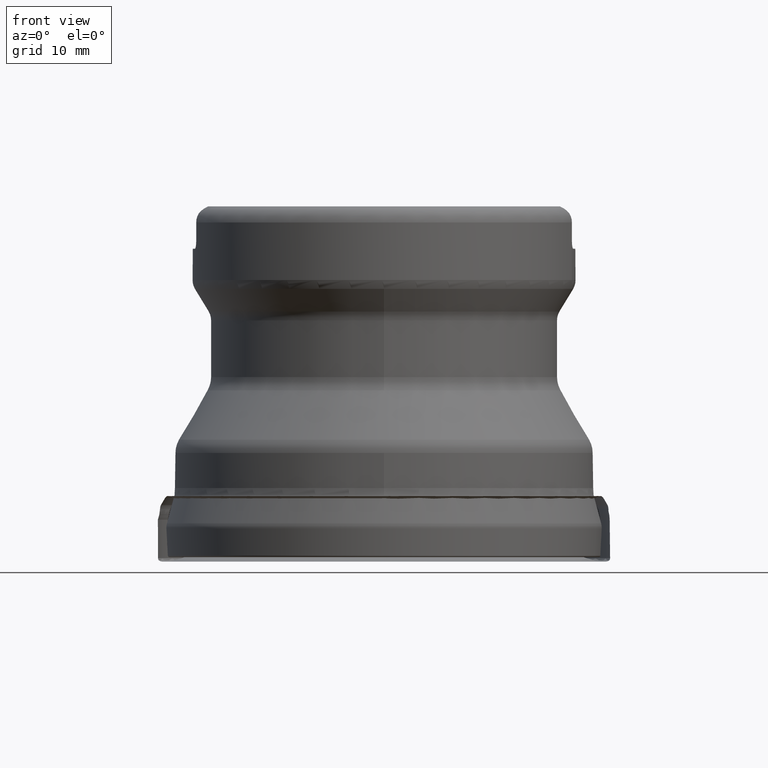
[diagram: clean part render]
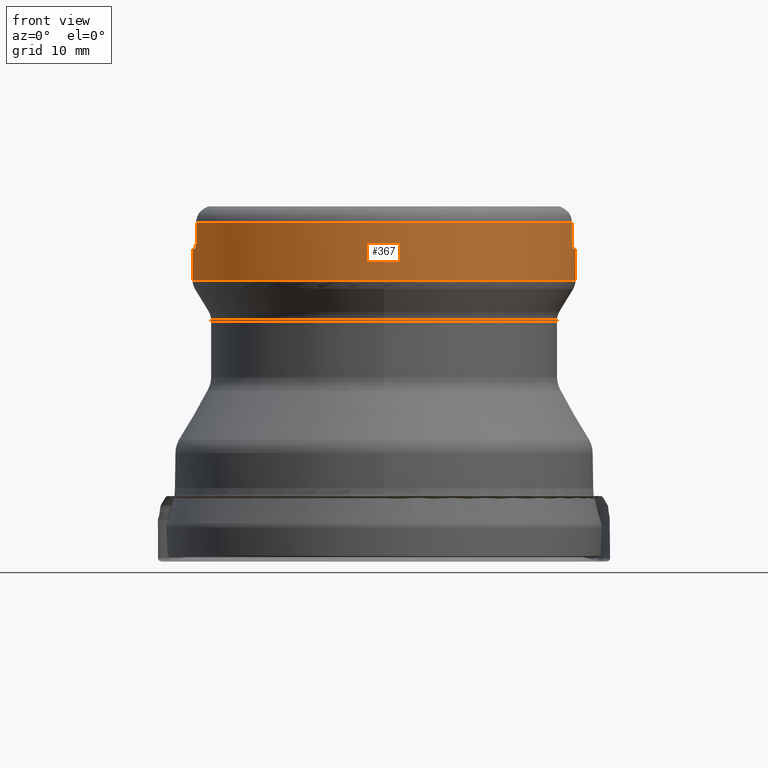
[diagram: same view with one face highlighted and labeled with its STEP entity id]
A machine part, front view. The second image highlights one B-rep face of the part: STEP entity #367.
In plain terms, the highlighted cylindrical surface (bore or boss wall) has radius 21.5011 mm, axis along (0, 0, 1).
Its self-contained STEP definition (entity closure, byte-faithful):
#154=CYLINDRICAL_SURFACE('',#1222,21.5011);
#181=FACE_BOUND('',#489,.T.);
#182=FACE_BOUND('',#490,.T.);
#300=LINE('',#1894,#326);
#302=LINE('',#1906,#328);
#305=LINE('',#1964,#331);
#309=LINE('',#1971,#335);
#326=VECTOR('',#1312,1.);
#328=VECTOR('',#1316,1.);
#331=VECTOR('',#1337,1.);
#335=VECTOR('',#1343,1.);
#367=ADVANCED_FACE('',(#181,#182),#154,.T.);
#489=EDGE_LOOP('',(#657,#658,#659,#660,#661,#662,#663,#664,#665,#666,#667,
#668));
#490=EDGE_LOOP('',(#669));
#657=ORIENTED_EDGE('',*,*,#958,.F.);
#658=ORIENTED_EDGE('',*,*,#926,.T.);
#659=ORIENTED_EDGE('',*,*,#939,.F.);
#660=ORIENTED_EDGE('',*,*,#981,.F.);
#661=ORIENTED_EDGE('',*,*,#982,.F.);
#662=ORIENTED_EDGE('',*,*,#983,.F.);
#663=ORIENTED_EDGE('',*,*,#942,.F.);
#664=ORIENTED_EDGE('',*,*,#932,.T.);
#665=ORIENTED_EDGE('',*,*,#962,.F.);
#666=ORIENTED_EDGE('',*,*,#984,.F.);
#667=ORIENTED_EDGE('',*,*,#985,.F.);
#668=ORIENTED_EDGE('',*,*,#986,.F.);
#669=ORIENTED_EDGE('',*,*,#987,.T.);
#830=VERTEX_POINT('',#1815);
#831=VERTEX_POINT('',#1817);
#836=VERTEX_POINT('',#1855);
#837=VERTEX_POINT('',#1857);
#842=VERTEX_POINT('',#1893);
#845=VERTEX_POINT('',#1907);
#857=VERTEX_POINT('',#1965);
#858=VERTEX_POINT('',#1970);
#877=VERTEX_POINT('',#2034);
#878=VERTEX_POINT('',#2036);
#879=VERTEX_POINT('',#2069);
#880=VERTEX_POINT('',#2071);
#881=VERTEX_POINT('',#2089);
#926=EDGE_CURVE('',#831,#830,#1042,.T.);
#932=EDGE_CURVE('',#837,#836,#1044,.T.);
#939=EDGE_CURVE('',#842,#830,#300,.T.);
#942=EDGE_CURVE('',#837,#845,#302,.T.);
#958=EDGE_CURVE('',#831,#857,#305,.T.);
#962=EDGE_CURVE('',#858,#836,#309,.T.);
#981=EDGE_CURVE('',#877,#842,#1146,.T.);
#982=EDGE_CURVE('',#878,#877,#1067,.T.);
#983=EDGE_CURVE('',#845,#878,#1147,.T.);
#984=EDGE_CURVE('',#879,#858,#1148,.T.);
#985=EDGE_CURVE('',#880,#879,#1068,.T.);
#986=EDGE_CURVE('',#857,#880,#1149,.T.);
#987=EDGE_CURVE('',#881,#881,#1069,.T.);
#1042=CIRCLE('',#1175,21.5011);
#1044=CIRCLE('',#1178,21.5011);
#1067=CIRCLE('',#1219,21.5011);
#1068=CIRCLE('',#1220,21.5011);
#1069=CIRCLE('',#1221,21.5011);
#1146=B_SPLINE_CURVE_WITH_KNOTS('',3,(#2018,#2019,#2020,#2021,#2022,#2023,
#2024,#2025,#2026,#2027,#2028,#2029,#2030,#2031,#2032,#2033),
 .UNSPECIFIED.,.F.,.F.,(4,3,3,3,3,4),(0.,0.218756441982408,0.437545109378676,
0.655670652064805,0.870709797959394,1.),.UNSPECIFIED.);
#1147=B_SPLINE_CURVE_WITH_KNOTS('',3,(#2037,#2038,#2039,#2040,#2041,#2042,
#2043,#2044,#2045,#2046,#2047,#2048,#2049,#2050,#2051,#2052),
 .UNSPECIFIED.,.F.,.F.,(4,3,3,3,3,4),(0.,0.210448399345335,0.420771498749136,
0.633053251974381,0.849054445211924,1.),.UNSPECIFIED.);
#1148=B_SPLINE_CURVE_WITH_KNOTS('',3,(#2053,#2054,#2055,#2056,#2057,#2058,
#2059,#2060,#2061,#2062,#2063,#2064,#2065,#2066,#2067,#2068),
 .UNSPECIFIED.,.F.,.F.,(4,3,3,3,3,4),(0.,0.218756441981838,0.437545109378107,
0.655670652064233,0.870709797958839,1.),.UNSPECIFIED.);
#1149=B_SPLINE_CURVE_WITH_KNOTS('',3,(#2072,#2073,#2074,#2075,#2076,#2077,
#2078,#2079,#2080,#2081,#2082,#2083,#2084,#2085,#2086,#2087),
 .UNSPECIFIED.,.F.,.F.,(4,3,3,3,3,4),(0.,0.210448399345335,0.420771498749136,
0.633053251974381,0.849054445211924,1.),.UNSPECIFIED.);
#1175=AXIS2_PLACEMENT_3D('',#1816,#1300,#1301);
#1178=AXIS2_PLACEMENT_3D('',#1856,#1306,#1307);
#1219=AXIS2_PLACEMENT_3D('',#2035,#1400,#1401);
#1220=AXIS2_PLACEMENT_3D('',#2070,#1402,#1403);
#1221=AXIS2_PLACEMENT_3D('',#2088,#1404,#1405);
#1222=AXIS2_PLACEMENT_3D('',#2090,#1406,#1407);
#1300=DIRECTION('',(0.,-1.17145536458252E-15,-1.));
#1301=DIRECTION('',(0.,-1.,1.2908909597941E-15));
#1306=DIRECTION('',(0.,-1.17145536458252E-15,-1.));
#1307=DIRECTION('',(0.,-1.,1.2908909597941E-15));
#1312=DIRECTION('',(0.,1.17145536458252E-15,1.));
#1316=DIRECTION('',(0.,-1.17145536458252E-15,-1.));
#1337=DIRECTION('',(0.,-1.17145536458252E-15,-1.));
#1343=DIRECTION('',(0.,1.17145536458252E-15,1.));
#1400=DIRECTION('',(0.,1.17145536458252E-15,1.));
#1401=DIRECTION('',(0.,1.,-1.2908909597941E-15));
#1402=DIRECTION('',(0.,1.17145536458252E-15,1.));
#1403=DIRECTION('',(0.,1.,-1.2908909597941E-15));
#1404=DIRECTION('',(0.,1.17145536458252E-15,1.));
#1405=DIRECTION('',(0.,1.,-1.2908909597941E-15));
#1406=DIRECTION('',(0.,1.17145536458252E-15,1.));
#1407=DIRECTION('',(0.,-1.,1.17145536458252E-15));
#1815=CARTESIAN_POINT('',(-21.0918627961126,-4.17499999999996,38.0780000000001));
#1816=CARTESIAN_POINT('',(0.,4.46066773725734E-14,38.078));
#1817=CARTESIAN_POINT('',(21.0918627961117,-4.17499999999996,38.078));
#1855=CARTESIAN_POINT('',(21.0918627961117,4.17500000000005,38.078));
#1856=CARTESIAN_POINT('',(0.,4.46066773725734E-14,38.078));
#1857=CARTESIAN_POINT('',(-21.0918627961117,4.17500000000005,38.078));
#1893=CARTESIAN_POINT('',(-21.0918627961117,-4.17499999999996,35.928));
#1894=CARTESIAN_POINT('',(-21.0918627961117,-4.17500000000001,5.40814546943227E-15));
#1906=CARTESIAN_POINT('',(-21.0918627961117,4.17500000000001,-4.37350682483182E-15));
#1907=CARTESIAN_POINT('',(-21.0918627961117,4.17500000000004,35.928));
#1964=CARTESIAN_POINT('',(21.0918627961117,-4.17500000000001,5.40814546943227E-15));
#1965=CARTESIAN_POINT('',(21.0918627961117,-4.17499999999996,35.928));
#1970=CARTESIAN_POINT('',(21.0918627961117,4.17500000000004,35.928));
#1971=CARTESIAN_POINT('',(21.0918627961117,4.17500000000001,-4.37350682483182E-15));
#2018=CARTESIAN_POINT('',(-21.2345632450964,-3.37499999999996,35.128));
#2019=CARTESIAN_POINT('',(-21.2201490805371,-3.4656899226547,35.128));
#2020=CARTESIAN_POINT('',(-21.2049237968124,-3.55752985698633,35.1438446109315));
#2021=CARTESIAN_POINT('',(-21.1902402238702,-3.64294118325737,35.1742045885556));
#2022=CARTESIAN_POINT('',(-21.175555674809,-3.72835818741238,35.2045665844183));
#2023=CARTESIAN_POINT('',(-21.1610126131831,-3.80972219533532,35.2502958840614));
#2024=CARTESIAN_POINT('',(-21.148078337195,-3.88021698540997,35.3077131327739));
#2025=CARTESIAN_POINT('',(-21.1351857472467,-3.95048457694419,35.3649453307175));
#2026=CARTESIAN_POINT('',(-21.1235444644248,-4.01191751619572,35.4354221225202));
#2027=CARTESIAN_POINT('',(-21.1144675730189,-4.05913295149775,35.5133168623215));
#2028=CARTESIAN_POINT('',(-21.1055184611036,-4.10568371384032,35.5901150427688));
#2029=CARTESIAN_POINT('',(-21.098825912747,-4.13970999287437,35.6763048205368));
#2030=CARTESIAN_POINT('',(-21.0951949305403,-4.15813083638619,35.7645800100936));
#2031=CARTESIAN_POINT('',(-21.0929912286291,-4.1693107446705,35.8181556524029));
#2032=CARTESIAN_POINT('',(-21.0918627961117,-4.17499999999996,35.8732259541369));
#2033=CARTESIAN_POINT('',(-21.0918627961117,-4.17499999999996,35.928));
#2034=CARTESIAN_POINT('',(-21.2345632450964,-3.37499999999996,35.128));
#2035=CARTESIAN_POINT('',(0.,4.11508840470549E-14,35.128));
#2036=CARTESIAN_POINT('',(-21.2345632450964,3.37500000000004,35.128));
#2037=CARTESIAN_POINT('',(-21.0918627961117,4.17500000000004,35.928));
#2038=CARTESIAN_POINT('',(-21.0918627961117,4.17500000000004,35.8396597191503));
#2039=CARTESIAN_POINT('',(-21.0948593916416,4.15993616783543,35.7501026915571));
#2040=CARTESIAN_POINT('',(-21.1004954623735,4.13114904746335,35.6667747752985));
#2041=CARTESIAN_POINT('',(-21.1061296547014,4.10237152133614,35.5834746307803));
#2042=CARTESIAN_POINT('',(-21.1145419778303,4.05911870780871,35.5041186617003));
#2043=CARTESIAN_POINT('',(-21.1247893617607,4.00506874238656,35.4350361272188));
#2044=CARTESIAN_POINT('',(-21.1351328364295,3.95051194506253,35.36530579894));
#2045=CARTESIAN_POINT('',(-21.1476095851408,3.88349898243639,35.3041434157692));
#2046=CARTESIAN_POINT('',(-21.1609324023123,3.80949354570513,35.2562743426512));
#2047=CARTESIAN_POINT('',(-21.1744850355269,3.73421152937221,35.2075795371954));
#2048=CARTESIAN_POINT('',(-21.1892694716522,3.64964957928478,35.1713123479708));
#2049=CARTESIAN_POINT('',(-21.2038860989597,3.56265568254105,35.1503205385186));
#2050=CARTESIAN_POINT('',(-21.2141731579726,3.50143011177618,35.1355466800847));
#2051=CARTESIAN_POINT('',(-21.2245459093848,3.43802629591597,35.128));
#2052=CARTESIAN_POINT('',(-21.2345632450964,3.37500000000004,35.128));
#2053=CARTESIAN_POINT('',(21.2345632450964,3.37500000000004,35.128));
#2054=CARTESIAN_POINT('',(21.2201490805372,3.46568992265455,35.1279999999999));
#2055=CARTESIAN_POINT('',(21.2049237968125,3.55752985698593,35.1438446109314));
#2056=CARTESIAN_POINT('',(21.1902402238703,3.64294118325677,35.1742045885554));
#2057=CARTESIAN_POINT('',(21.1755556748091,3.72835818741182,35.204566584418));
#2058=CARTESIAN_POINT('',(21.1610126131832,3.8097221953348,35.250295884061));
#2059=CARTESIAN_POINT('',(21.1480783371951,3.88021698540949,35.3077131327734));
#2060=CARTESIAN_POINT('',(21.1351857472468,3.95048457694377,35.364945330717));
#2061=CARTESIAN_POINT('',(21.1235444644249,4.01191751619536,35.4354221225196));
#2062=CARTESIAN_POINT('',(21.1144675730189,4.05913295149746,35.5133168623208));
#2063=CARTESIAN_POINT('',(21.1055184611037,4.1056837138401,35.5901150427681));
#2064=CARTESIAN_POINT('',(21.098825912747,4.13970999287423,35.6763048205361));
#2065=CARTESIAN_POINT('',(21.0951949305403,4.15813083638613,35.7645800100929));
#2066=CARTESIAN_POINT('',(21.0929912286292,4.16931074467053,35.8181556524024));
#2067=CARTESIAN_POINT('',(21.0918627961117,4.17500000000004,35.8732259541367));
#2068=CARTESIAN_POINT('',(21.0918627961117,4.17500000000004,35.928));
#2069=CARTESIAN_POINT('',(21.2345632450964,3.37500000000004,35.128));
#2070=CARTESIAN_POINT('',(0.,4.11508840470549E-14,35.128));
#2071=CARTESIAN_POINT('',(21.2345632450964,-3.37499999999996,35.128));
#2072=CARTESIAN_POINT('',(21.0918627961117,-4.17499999999996,35.928));
#2073=CARTESIAN_POINT('',(21.0918627961117,-4.17499999999996,35.8396597191503));
#2074=CARTESIAN_POINT('',(21.0948593916416,-4.15993616783534,35.7501026915571));
#2075=CARTESIAN_POINT('',(21.1004954623735,-4.13114904746327,35.6667747752985));
#2076=CARTESIAN_POINT('',(21.1061296547014,-4.10237152133606,35.5834746307803));
#2077=CARTESIAN_POINT('',(21.1145419778303,-4.05911870780863,35.5041186617003));
#2078=CARTESIAN_POINT('',(21.1247893617607,-4.00506874238648,35.4350361272188));
#2079=CARTESIAN_POINT('',(21.1351328364295,-3.95051194506244,35.36530579894));
#2080=CARTESIAN_POINT('',(21.1476095851408,-3.88349898243631,35.3041434157692));
#2081=CARTESIAN_POINT('',(21.1609324023123,-3.80949354570505,35.2562743426513));
#2082=CARTESIAN_POINT('',(21.1744850355269,-3.73421152937213,35.2075795371954));
#2083=CARTESIAN_POINT('',(21.1892694716522,-3.6496495792847,35.1713123479708));
#2084=CARTESIAN_POINT('',(21.2038860989597,-3.56265568254097,35.1503205385186));
#2085=CARTESIAN_POINT('',(21.2141731579726,-3.5014301117761,35.1355466800847));
#2086=CARTESIAN_POINT('',(21.2245459093848,-3.43802629591589,35.128));
#2087=CARTESIAN_POINT('',(21.2345632450964,-3.37499999999996,35.128));
#2088=CARTESIAN_POINT('',(0.,3.70342708583137E-14,31.6138983848623));
#2089=CARTESIAN_POINT('',(0.,21.5011,31.6138983848622));
#2090=CARTESIAN_POINT('',(0.,0.,0.));